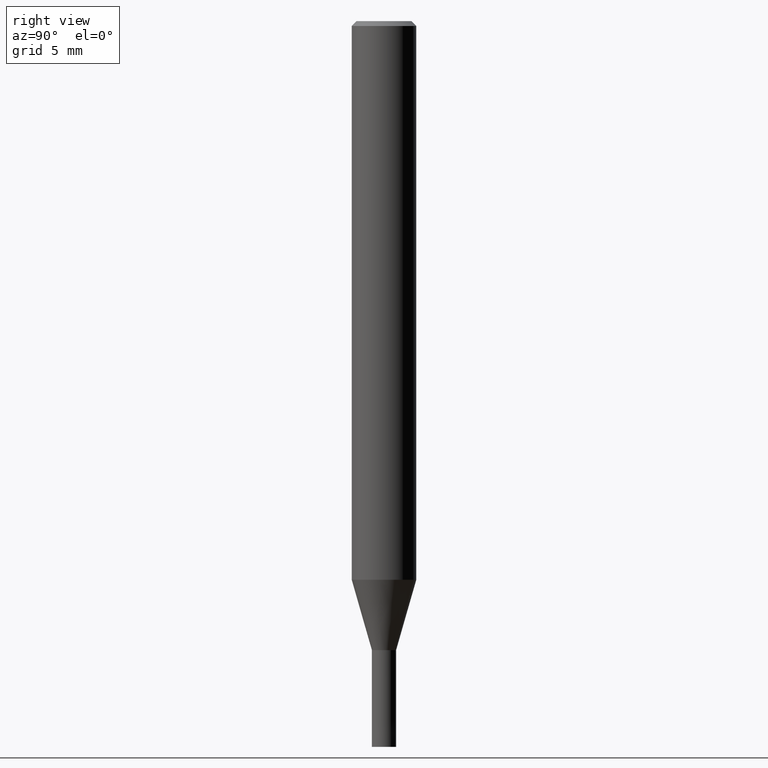
[diagram: clean part render]
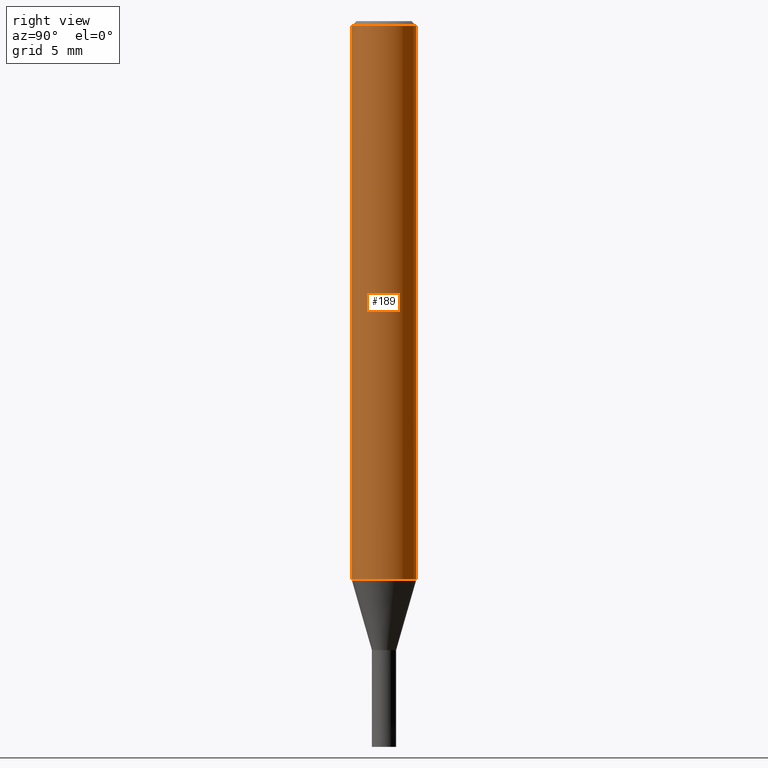
[diagram: same view with one face highlighted and labeled with its STEP entity id]
A machine part, right view. The second image highlights one B-rep face of the part: STEP entity #189.
In plain terms, the highlighted cylindrical surface (edge-blend (fillet) strip) has radius 2 mm, axis along (-0, -0, 1).
Its self-contained STEP definition (entity closure, byte-faithful):
#131=EDGE_CURVE('',#233,#147,#305,.T.);
#147=VERTEX_POINT('',#323);
#159=VERTEX_POINT('',#335);
#161=EDGE_CURVE('',#197,#159,#337,.T.);
#181=EDGE_CURVE('',#147,#159,#361,.T.);
#189=ADVANCED_FACE('',(#371),#372,.T.);
#197=VERTEX_POINT('',#382);
#233=VERTEX_POINT('',#422);
#251=EDGE_CURVE('',#197,#233,#444,.T.);
#305=CIRCLE('',#497,2.0);
#323=CARTESIAN_POINT('',(2.44921270764475E-016,-2.0,-34.641));
#335=CARTESIAN_POINT('',(2.44921270764475E-016,-2.0,-0.299999999999997));
#337=CIRCLE('',#542,2.0);
#361=LINE('',#570,#571);
#371=FACE_OUTER_BOUND('',#580,.T.);
#372=CYLINDRICAL_SURFACE('',#581,2.0);
#382=CARTESIAN_POINT('',(0.0,2.0,-0.299999999999997));
#422=CARTESIAN_POINT('',(0.0,2.0,-34.641));
#444=LINE('',#671,#672);
#497=AXIS2_PLACEMENT_3D('',#712,#713,#714);
#542=AXIS2_PLACEMENT_3D('',#752,#753,#754);
#570=CARTESIAN_POINT('',(2.44921270764475E-016,-2.0,-17.4705));
#571=VECTOR('',#788,1.0);
#580=EDGE_LOOP('',(#805,#806,#807,#808));
#581=AXIS2_PLACEMENT_3D('',#809,#810,#811);
#671=CARTESIAN_POINT('',(-2.44921270764475E-016,2.0,-17.4705));
#672=VECTOR('',#899,1.0);
#712=CARTESIAN_POINT('',(0.0,0.0,-34.641));
#713=DIRECTION('',(0.0,0.0,-1.0));
#714=DIRECTION('',(0.0,1.0,0.0));
#752=CARTESIAN_POINT('',(0.0,0.0,-0.299999999999997));
#753=DIRECTION('',(0.0,0.0,-1.0));
#754=DIRECTION('',(0.0,1.0,0.0));
#788=DIRECTION('',(-0.0,-0.0,1.0));
#805=ORIENTED_EDGE('',*,*,#251,.F.);
#806=ORIENTED_EDGE('',*,*,#161,.T.);
#807=ORIENTED_EDGE('',*,*,#181,.F.);
#808=ORIENTED_EDGE('',*,*,#131,.F.);
#809=CARTESIAN_POINT('',(0.0,0.0,-17.4705));
#810=DIRECTION('',(-0.0,-0.0,1.0));
#811=DIRECTION('',(0.0,1.0,0.0));
#899=DIRECTION('',(0.0,0.0,-1.0));